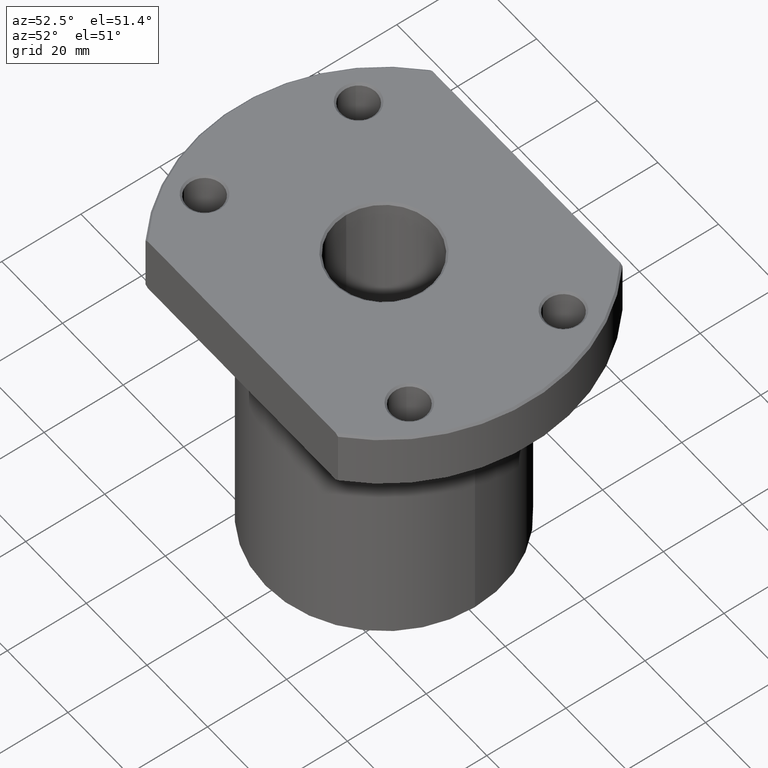
[diagram: clean part render]
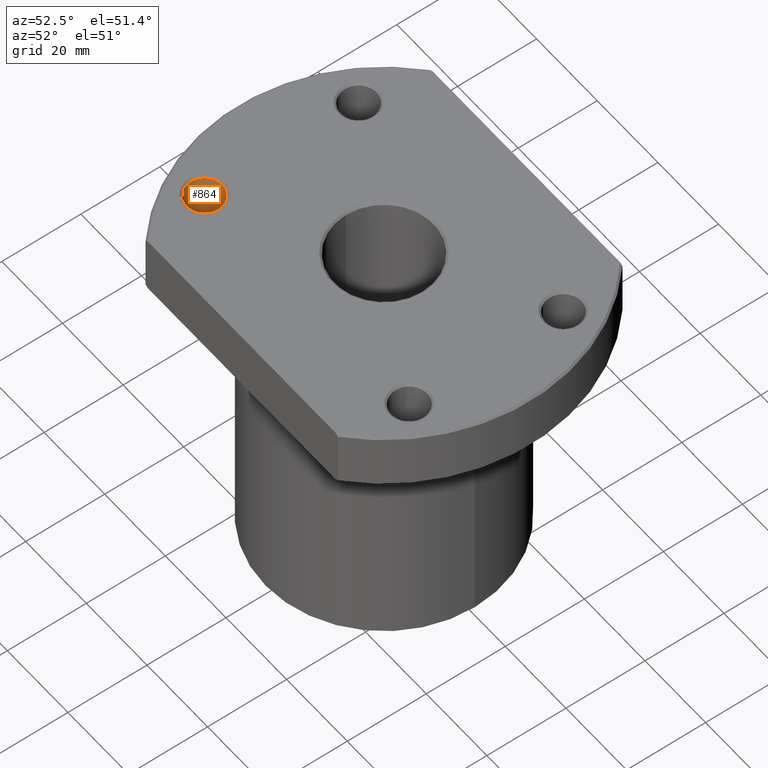
[diagram: same view with one face highlighted and labeled with its STEP entity id]
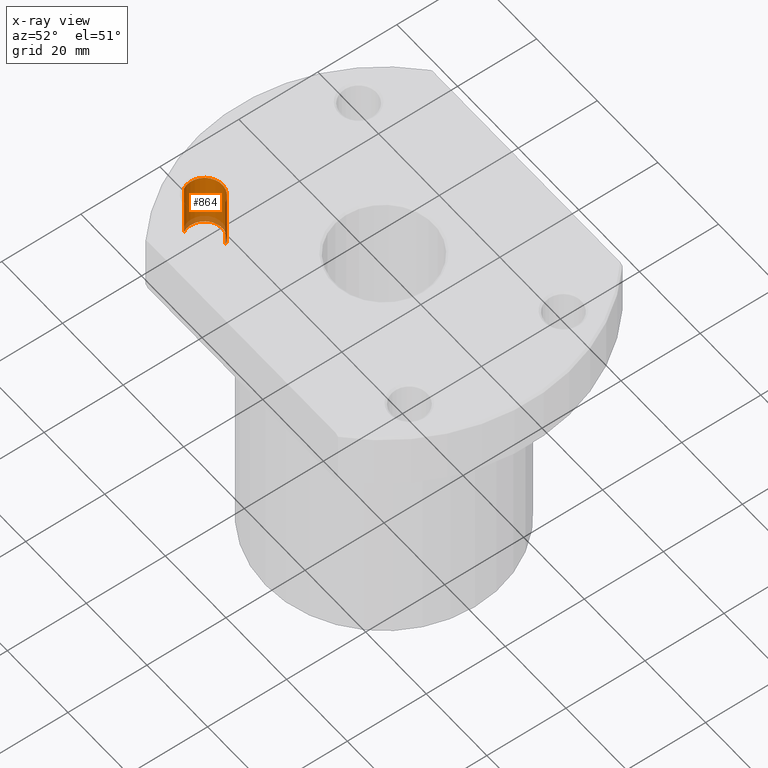
[diagram: x-ray of the same camera — body ghosted, the highlighted face saturated]
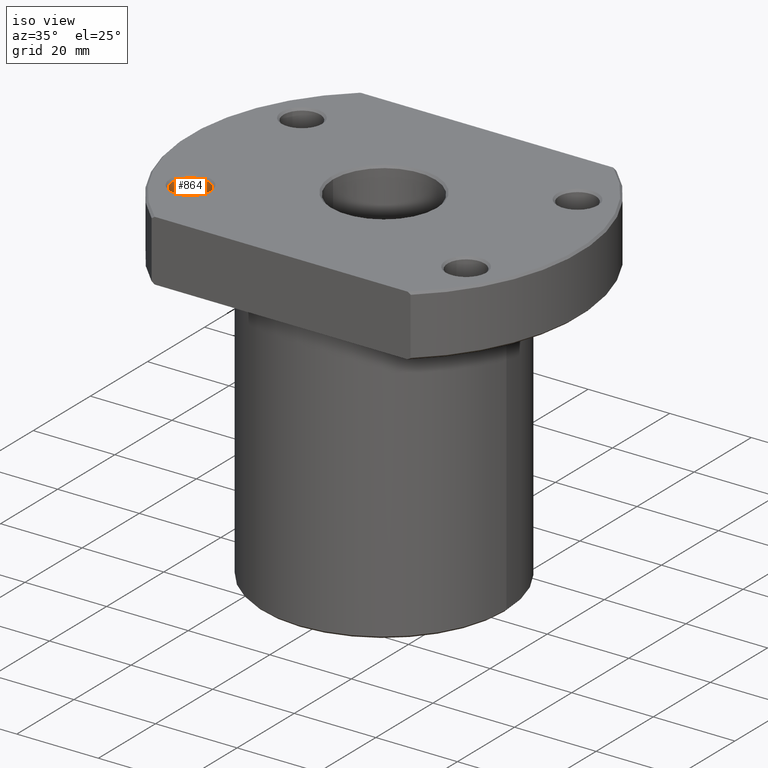
[diagram: same view with one face highlighted and labeled with its STEP entity id]
A machine part, auxiliary view. The second image highlights one B-rep face of the part: STEP entity #864.
The next image is the same camera in x-ray: the body ghosted, the highlighted face saturated — about 12% of this face is hidden behind the body in this view.
A second angle (iso view) of the same face is appended — the face is thin or edge-on in the first view.
In plain terms, the highlighted cylindrical surface (edge-blend (fillet) strip) has radius 4.5 mm, axis along (0, 0, 1).
Its self-contained STEP definition (entity closure, byte-faithful):
#807=AXIS2_PLACEMENT_3D('Circle Axis2P3D',#805,#806,$) ;
#825=AXIS2_PLACEMENT_3D('Cylinder Axis2P3D',#822,#823,#824) ;
#855=AXIS2_PLACEMENT_3D('Circle Axis2P3D',#853,#854,$) ;
#771=CARTESIAN_POINT('Vertex',(-37.6721050646,-21.75,70.5)) ;
#778=CARTESIAN_POINT('Vertex',(-29.8778764306,-17.25,70.5)) ;
#805=CARTESIAN_POINT('Axis2P3D Location',(-33.7749907476,-19.5,70.5)) ;
#822=CARTESIAN_POINT('Axis2P3D Location',(-33.7749907476,-19.5,77.5)) ;
#831=CARTESIAN_POINT('Vertex',(-37.6721050646,-21.75,84.5)) ;
#833=CARTESIAN_POINT('Vertex',(-29.8778764306,-17.25,84.5)) ;
#836=CARTESIAN_POINT('Line Origine',(-29.8778764306,-17.25,77.5)) ;
#841=CARTESIAN_POINT('Line Origine',(-37.6721050646,-21.75,77.5)) ;
#853=CARTESIAN_POINT('Axis2P3D Location',(-33.7749907476,-19.5,84.5)) ;
#806=DIRECTION('Axis2P3D Direction',(4.54542310779E-014,-7.87290376459E-014,1.)) ;
#823=DIRECTION('Axis2P3D Direction',(0.,0.,1.)) ;
#824=DIRECTION('Axis2P3D XDirection',(0.866025403784,0.5,0.)) ;
#837=DIRECTION('Vector Direction',(0.,0.,1.)) ;
#842=DIRECTION('Vector Direction',(0.,0.,1.)) ;
#854=DIRECTION('Axis2P3D Direction',(0.,0.,1.)) ;
#838=VECTOR('Line Direction',#837,1.) ;
#843=VECTOR('Line Direction',#842,1.) ;
#859=ORIENTED_EDGE('',*,*,#857,.T.) ;
#860=ORIENTED_EDGE('',*,*,#845,.F.) ;
#861=ORIENTED_EDGE('',*,*,#809,.F.) ;
#862=ORIENTED_EDGE('',*,*,#840,.T.) ;
#864=ADVANCED_FACE('',(#863),#826,.F.) ;
#808=CIRCLE('generated circle',#807,4.5) ;
#856=CIRCLE('generated circle',#855,4.5) ;
#826=CYLINDRICAL_SURFACE('generated cylinder',#825,4.5) ;
#809=EDGE_CURVE('',#779,#772,#808,.T.) ;
#840=EDGE_CURVE('',#779,#834,#839,.T.) ;
#845=EDGE_CURVE('',#772,#832,#844,.T.) ;
#857=EDGE_CURVE('',#834,#832,#856,.T.) ;
#858=EDGE_LOOP('',(#859,#860,#861,#862)) ;
#863=FACE_OUTER_BOUND('',#858,.T.) ;
#839=LINE('Line',#836,#838) ;
#844=LINE('Line',#841,#843) ;
#772=VERTEX_POINT('',#771) ;
#779=VERTEX_POINT('',#778) ;
#832=VERTEX_POINT('',#831) ;
#834=VERTEX_POINT('',#833) ;